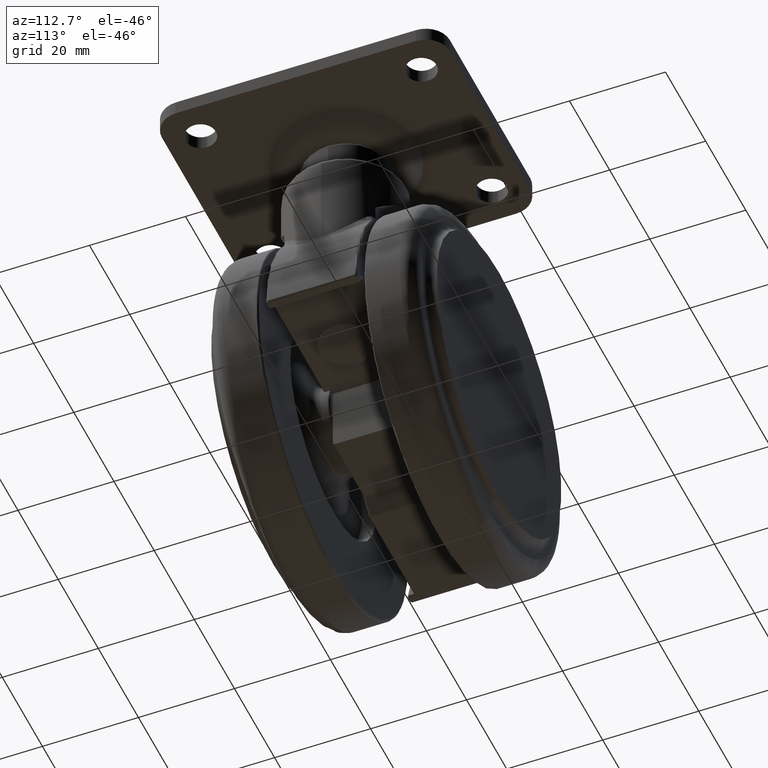
[diagram: clean part render]
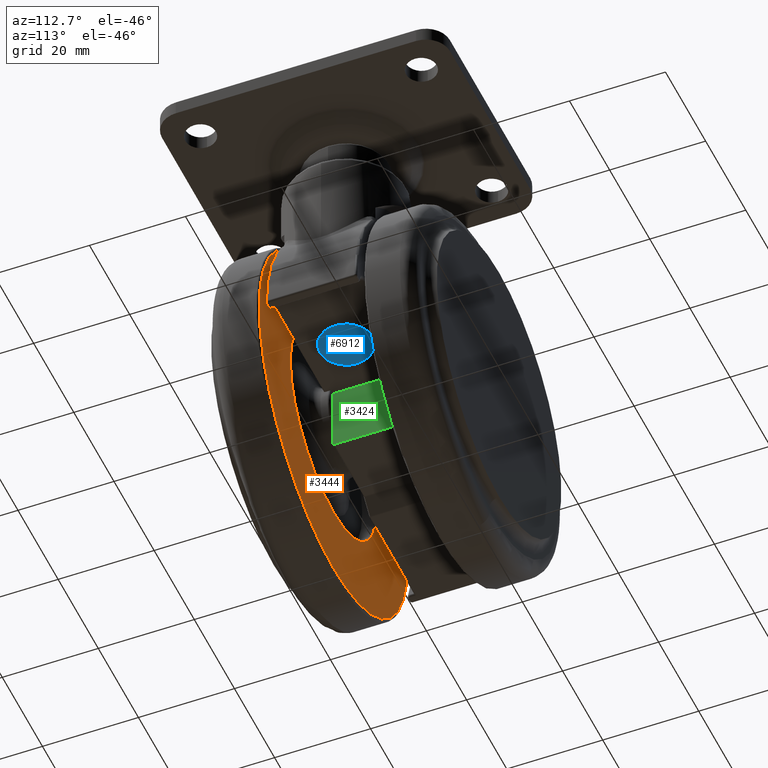
[diagram: same view with three faces highlighted in distinct colors, each labeled with its STEP entity id]
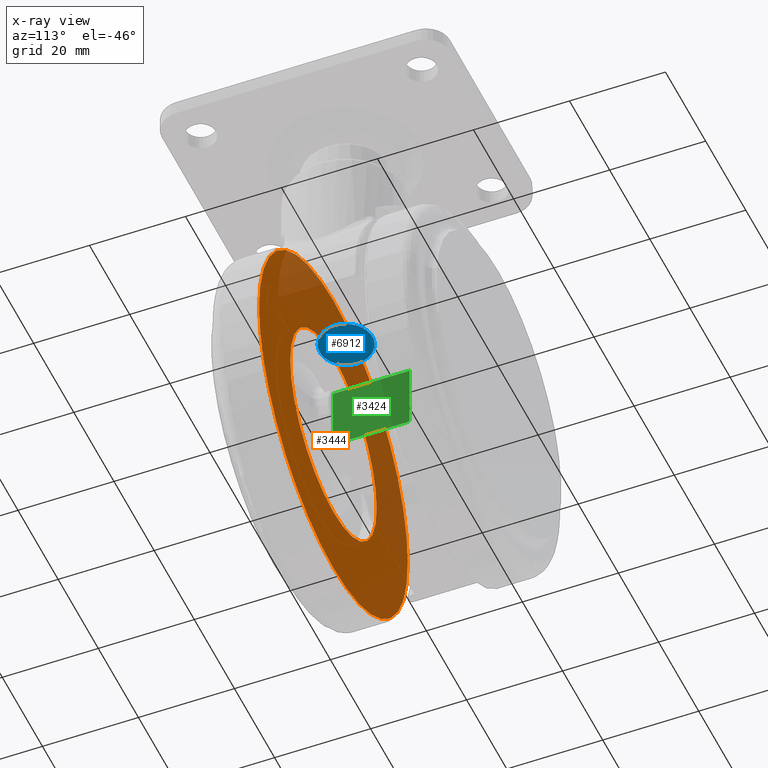
[diagram: x-ray of the same camera — body ghosted, the three highlighted faces saturated]
A machine part, auxiliary view with three faces highlighted in distinct colors.
The next image is the same camera in x-ray (body ghosted, the three faces saturated) — at least one of them is partly hidden behind the body in this view.
Their STEP definitions:

[orange] entity #3444 — the highlighted planar face has unit normal (0, 1, 0).
#63 = DIRECTION ( 'NONE',  ( 0.0000000000000000000, 0.0000000000000000000, -1.000000000000000000 ) ) ;
#90 = FACE_BOUND ( 'NONE', #2090, .T. ) ;
#290 = DIRECTION ( 'NONE',  ( 0.0000000000000000000, 0.0000000000000000000, 1.000000000000000000 ) ) ;
#481 = EDGE_CURVE ( 'NONE', #8821, #7936, #5842, .T. ) ;
#623 = EDGE_CURVE ( 'NONE', #927, #8205, #8928, .T. ) ;
#781 = AXIS2_PLACEMENT_3D ( 'NONE', #8473, #4267, #63 ) ;
#927 = VERTEX_POINT ( 'NONE', #1387 ) ;
#936 = ORIENTED_EDGE ( 'NONE', *, *, #623, .F. ) ;
#994 = DIRECTION ( 'NONE',  ( 0.0000000000000000000, -1.000000000000000000, 0.0000000000000000000 ) ) ;
#1197 = CIRCLE ( 'NONE', #781, 21.50000000000000000 ) ;
#1387 = CARTESIAN_POINT ( 'NONE',  ( -20.00000000000000000, -11.00000000000000000, -77.50000000000000000 ) ) ;
#1510 = CARTESIAN_POINT ( 'NONE',  ( -20.00000000000000000, -11.00000000000000000, -62.00000000000000000 ) ) ;
#1681 = AXIS2_PLACEMENT_3D ( 'NONE', #6539, #4501, #290 ) ;
#1780 = EDGE_CURVE ( 'NONE', #8205, #927, #2426, .T. ) ;
#1810 = EDGE_LOOP ( 'NONE', ( #936, #2163 ) ) ;
#1864 = DIRECTION ( 'NONE',  ( 0.0000000000000000000, -1.000000000000000000, 0.0000000000000000000 ) ) ;
#2026 = AXIS2_PLACEMENT_3D ( 'NONE', #5204, #994, #5903 ) ;
#2090 = EDGE_LOOP ( 'NONE', ( #3075, #6206 ) ) ;
#2151 = CARTESIAN_POINT ( 'NONE',  ( -19.99999999999999600, -11.00000000000000000, -19.00000000000000400 ) ) ;
#2163 = ORIENTED_EDGE ( 'NONE', *, *, #1780, .F. ) ;
#2426 = CIRCLE ( 'NONE', #2026, 37.00000000000000000 ) ;
#2881 = EDGE_CURVE ( 'NONE', #7936, #8821, #1197, .T. ) ;
#2887 = DIRECTION ( 'NONE',  ( 0.0000000000000000000, -1.000000000000000000, 0.0000000000000000000 ) ) ;
#2953 = DIRECTION ( 'NONE',  ( 0.0000000000000000000, 0.0000000000000000000, -1.000000000000000000 ) ) ;
#3075 = ORIENTED_EDGE ( 'NONE', *, *, #481, .T. ) ;
#3084 = PLANE ( 'NONE',  #1681 ) ;
#3444 = ADVANCED_FACE ( 'NONE', ( #90, #3829 ), #3084, .T. ) ;
#3829 = FACE_OUTER_BOUND ( 'NONE', #1810, .T. ) ;
#3952 = CARTESIAN_POINT ( 'NONE',  ( -20.00000000000000000, -11.00000000000000000, -40.50000000000000000 ) ) ;
#4267 = DIRECTION ( 'NONE',  ( 0.0000000000000000000, -1.000000000000000000, 0.0000000000000000000 ) ) ;
#4309 = AXIS2_PLACEMENT_3D ( 'NONE', #3952, #1864, #5339 ) ;
#4491 = AXIS2_PLACEMENT_3D ( 'NONE', #7085, #2887, #2953 ) ;
#4501 = DIRECTION ( 'NONE',  ( 0.0000000000000000000, 1.000000000000000000, 0.0000000000000000000 ) ) ;
#5204 = CARTESIAN_POINT ( 'NONE',  ( -20.00000000000000000, -11.00000000000000000, -40.50000000000000000 ) ) ;
#5339 = DIRECTION ( 'NONE',  ( 0.0000000000000000000, 0.0000000000000000000, -1.000000000000000000 ) ) ;
#5842 = CIRCLE ( 'NONE', #4491, 21.50000000000000000 ) ;
#5903 = DIRECTION ( 'NONE',  ( 0.0000000000000000000, 0.0000000000000000000, -1.000000000000000000 ) ) ;
#6206 = ORIENTED_EDGE ( 'NONE', *, *, #2881, .T. ) ;
#6539 = CARTESIAN_POINT ( 'NONE',  ( -57.00000000000000000, -11.00000000000000000, -40.50000000000000000 ) ) ;
#7085 = CARTESIAN_POINT ( 'NONE',  ( -20.00000000000000000, -11.00000000000000000, -40.50000000000000000 ) ) ;
#7936 = VERTEX_POINT ( 'NONE', #2151 ) ;
#8205 = VERTEX_POINT ( 'NONE', #8505 ) ;
#8473 = CARTESIAN_POINT ( 'NONE',  ( -20.00000000000000000, -11.00000000000000000, -40.50000000000000000 ) ) ;
#8505 = CARTESIAN_POINT ( 'NONE',  ( -19.99999999999999600, -11.00000000000000000, -3.500000000000003100 ) ) ;
#8821 = VERTEX_POINT ( 'NONE', #1510 ) ;
#8928 = CIRCLE ( 'NONE', #4309, 37.00000000000000000 ) ;

[blue] entity #6912 — the highlighted planar face has unit normal (0, 0, 1).
#120 = AXIS2_PLACEMENT_3D ( 'NONE', #3434, #8347, #4150 ) ;
#310 = DIRECTION ( 'NONE',  ( 1.000000000000000000, 0.0000000000000000000, 0.0000000000000000000 ) ) ;
#1057 = EDGE_LOOP ( 'NONE', ( #5346, #5233 ) ) ;
#1625 = CARTESIAN_POINT ( 'NONE',  ( 0.0000000000000000000, 0.0000000000000000000, -39.11339081420345600 ) ) ;
#2340 = DIRECTION ( 'NONE',  ( -1.000000000000000000, 0.0000000000000000000, 0.0000000000000000000 ) ) ;
#3041 = AXIS2_PLACEMENT_3D ( 'NONE', #8012, #4516, #310 ) ;
#3071 = CARTESIAN_POINT ( 'NONE',  ( 5.500000000000019500, 6.735557395310466700E-016, -39.11339081420345600 ) ) ;
#3104 = PLANE ( 'NONE',  #3041 ) ;
#3434 = CARTESIAN_POINT ( 'NONE',  ( 0.0000000000000000000, 0.0000000000000000000, -39.11339081420345600 ) ) ;
#4150 = DIRECTION ( 'NONE',  ( -1.000000000000000000, 0.0000000000000000000, 0.0000000000000000000 ) ) ;
#4516 = DIRECTION ( 'NONE',  ( 0.0000000000000000000, 0.0000000000000000000, 1.000000000000000000 ) ) ;
#5030 = VERTEX_POINT ( 'NONE', #3071 ) ;
#5233 = ORIENTED_EDGE ( 'NONE', *, *, #8073, .T. ) ;
#5346 = ORIENTED_EDGE ( 'NONE', *, *, #7828, .T. ) ;
#5697 = VERTEX_POINT ( 'NONE', #8863 ) ;
#6482 = CIRCLE ( 'NONE', #7157, 5.500000000000000000 ) ;
#6522 = DIRECTION ( 'NONE',  ( 0.0000000000000000000, 0.0000000000000000000, -1.000000000000000000 ) ) ;
#6912 = ADVANCED_FACE ( 'NONE', ( #7379 ), #3104, .F. ) ;
#7157 = AXIS2_PLACEMENT_3D ( 'NONE', #1625, #6522, #2340 ) ;
#7379 = FACE_OUTER_BOUND ( 'NONE', #1057, .T. ) ;
#7828 = EDGE_CURVE ( 'NONE', #5697, #5030, #8030, .T. ) ;
#8012 = CARTESIAN_POINT ( 'NONE',  ( 5.500000000000000000, 0.0000000000000000000, -39.11339081420345600 ) ) ;
#8030 = CIRCLE ( 'NONE', #120, 5.500000000000000000 ) ;
#8073 = EDGE_CURVE ( 'NONE', #5030, #5697, #6482, .T. ) ;
#8347 = DIRECTION ( 'NONE',  ( 0.0000000000000000000, 0.0000000000000000000, -1.000000000000000000 ) ) ;
#8863 = CARTESIAN_POINT ( 'NONE',  ( -5.500000000000019500, 0.0000000000000000000, -39.11339081420345600 ) ) ;

[green] entity #3424 — the highlighted planar face has unit normal (1, 0, 0).
#270 = AXIS2_PLACEMENT_3D ( 'NONE', #8689, #966, #5872 ) ;
#551 = DIRECTION ( 'NONE',  ( 1.000000000000000000, 0.0000000000000000000, 0.0000000000000000000 ) ) ;
#588 = ORIENTED_EDGE ( 'NONE', *, *, #4697, .T. ) ;
#799 = ORIENTED_EDGE ( 'NONE', *, *, #3897, .T. ) ;
#901 = AXIS2_PLACEMENT_3D ( 'NONE', #4764, #551, #5475 ) ;
#966 = DIRECTION ( 'NONE',  ( 1.000000000000000000, 0.0000000000000000000, 0.0000000000000000000 ) ) ;
#989 = VECTOR ( 'NONE', #8905, 1000.000000000000000 ) ;
#1079 = VERTEX_POINT ( 'NONE', #3242 ) ;
#1490 = VECTOR ( 'NONE', #2722, 1000.000000000000000 ) ;
#1537 = CARTESIAN_POINT ( 'NONE',  ( -12.49999999999968000, 990.5000000000000000, -51.70000000000000300 ) ) ;
#1571 = CARTESIAN_POINT ( 'NONE',  ( -12.49999999999968000, -7.500000000000000000, -51.20000000000000300 ) ) ;
#1642 = PLANE ( 'NONE',  #270 ) ;
#1930 = EDGE_CURVE ( 'NONE', #7111, #5737, #3404, .T. ) ;
#2076 = ORIENTED_EDGE ( 'NONE', *, *, #1930, .T. ) ;
#2286 = DIRECTION ( 'NONE',  ( 0.0000000000000000000, 0.0000000000000000000, -1.000000000000000000 ) ) ;
#2433 = VECTOR ( 'NONE', #9095, 1000.000000000000000 ) ;
#2456 = VERTEX_POINT ( 'NONE', #6742 ) ;
#2461 = EDGE_CURVE ( 'NONE', #7617, #1079, #4726, .T. ) ;
#2599 = CARTESIAN_POINT ( 'NONE',  ( -12.49999999999966100, 8.000000000000000000, -51.20000000000000300 ) ) ;
#2722 = DIRECTION ( 'NONE',  ( 0.0000000000000000000, -1.000000000000000000, 0.0000000000000000000 ) ) ;
#2951 = DIRECTION ( 'NONE',  ( 0.0000000000000000000, -1.000000000000000000, 0.0000000000000000000 ) ) ;
#3242 = CARTESIAN_POINT ( 'NONE',  ( -12.49999999999968000, -8.000000000000000000, -51.20000000000000300 ) ) ;
#3361 = LINE ( 'NONE', #6187, #1490 ) ;
#3404 = CIRCLE ( 'NONE', #901, 0.5000000000000004400 ) ;
#3424 = ADVANCED_FACE ( 'NONE', ( #7772 ), #1642, .T. ) ;
#3897 = EDGE_CURVE ( 'NONE', #1079, #2456, #6771, .T. ) ;
#3991 = CARTESIAN_POINT ( 'NONE',  ( -12.49999999999968000, -8.000000000000000000, 0.0000000000000000000 ) ) ;
#4520 = LINE ( 'NONE', #6950, #2433 ) ;
#4674 = ORIENTED_EDGE ( 'NONE', *, *, #7859, .F. ) ;
#4697 = EDGE_CURVE ( 'NONE', #7386, #7617, #3361, .T. ) ;
#4726 = LINE ( 'NONE', #3991, #989 ) ;
#4764 = CARTESIAN_POINT ( 'NONE',  ( -12.49999999999968000, 7.500000000000000000, -51.20000000000000300 ) ) ;
#5129 = ORIENTED_EDGE ( 'NONE', *, *, #8846, .F. ) ;
#5301 = LINE ( 'NONE', #1537, #8810 ) ;
#5475 = DIRECTION ( 'NONE',  ( 0.0000000000000000000, 0.0000000000000000000, -1.000000000000000000 ) ) ;
#5737 = VERTEX_POINT ( 'NONE', #2599 ) ;
#5872 = DIRECTION ( 'NONE',  ( 0.0000000000000000000, 0.0000000000000000000, -1.000000000000000000 ) ) ;
#6187 = CARTESIAN_POINT ( 'NONE',  ( -12.49999999999968000, 990.5000000000000000, -37.61339081420334900 ) ) ;
#6471 = DIRECTION ( 'NONE',  ( 1.000000000000000000, 0.0000000000000000000, 0.0000000000000000000 ) ) ;
#6673 = AXIS2_PLACEMENT_3D ( 'NONE', #1571, #6471, #2286 ) ;
#6742 = CARTESIAN_POINT ( 'NONE',  ( -12.49999999999968000, -7.500000000000000000, -51.70000000000000300 ) ) ;
#6771 = CIRCLE ( 'NONE', #6673, 0.5000000000000004400 ) ;
#6833 = CARTESIAN_POINT ( 'NONE',  ( -12.49999999999968000, 7.500000000000000000, -51.70000000000000300 ) ) ;
#6950 = CARTESIAN_POINT ( 'NONE',  ( -12.49999999999966100, 8.000000000000000000, 0.0000000000000000000 ) ) ;
#6992 = EDGE_LOOP ( 'NONE', ( #5129, #2076, #4674, #588, #8226, #799 ) ) ;
#7111 = VERTEX_POINT ( 'NONE', #6833 ) ;
#7154 = CARTESIAN_POINT ( 'NONE',  ( -12.49999999999966100, 8.000000000000000000, -37.61339081420334900 ) ) ;
#7355 = CARTESIAN_POINT ( 'NONE',  ( -12.49999999999968000, -8.000000000000000000, -37.61339081420334900 ) ) ;
#7386 = VERTEX_POINT ( 'NONE', #7154 ) ;
#7617 = VERTEX_POINT ( 'NONE', #7355 ) ;
#7772 = FACE_OUTER_BOUND ( 'NONE', #6992, .T. ) ;
#7859 = EDGE_CURVE ( 'NONE', #7386, #5737, #4520, .T. ) ;
#8226 = ORIENTED_EDGE ( 'NONE', *, *, #2461, .T. ) ;
#8689 = CARTESIAN_POINT ( 'NONE',  ( -12.49999999999968000, 990.5000000000000000, -51.70000000000000300 ) ) ;
#8810 = VECTOR ( 'NONE', #2951, 1000.000000000000000 ) ;
#8846 = EDGE_CURVE ( 'NONE', #7111, #2456, #5301, .T. ) ;
#8905 = DIRECTION ( 'NONE',  ( -0.0000000000000000000, -0.0000000000000000000, -1.000000000000000000 ) ) ;
#9095 = DIRECTION ( 'NONE',  ( -0.0000000000000000000, -0.0000000000000000000, -1.000000000000000000 ) ) ;